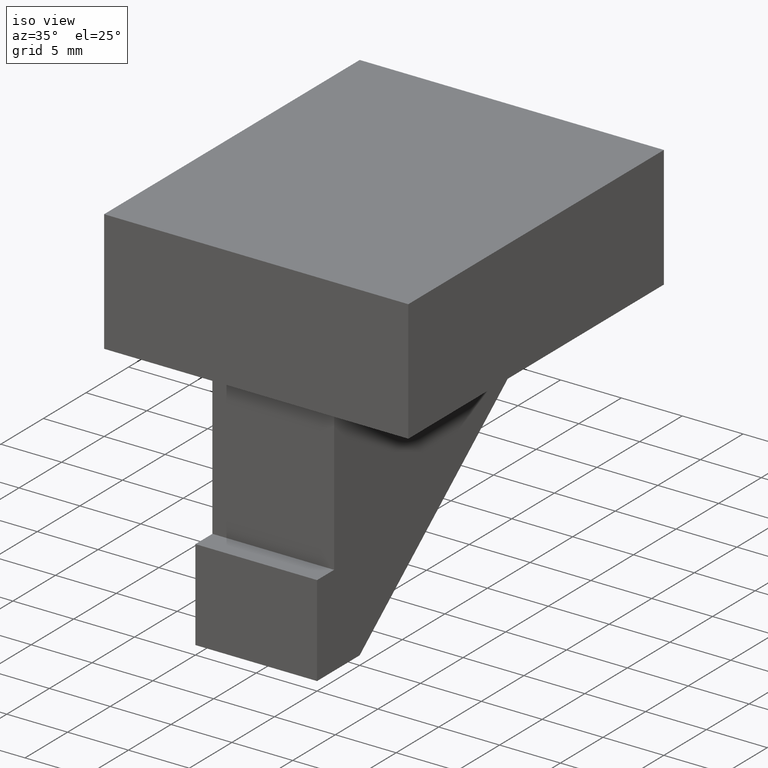
[diagram: clean part render]
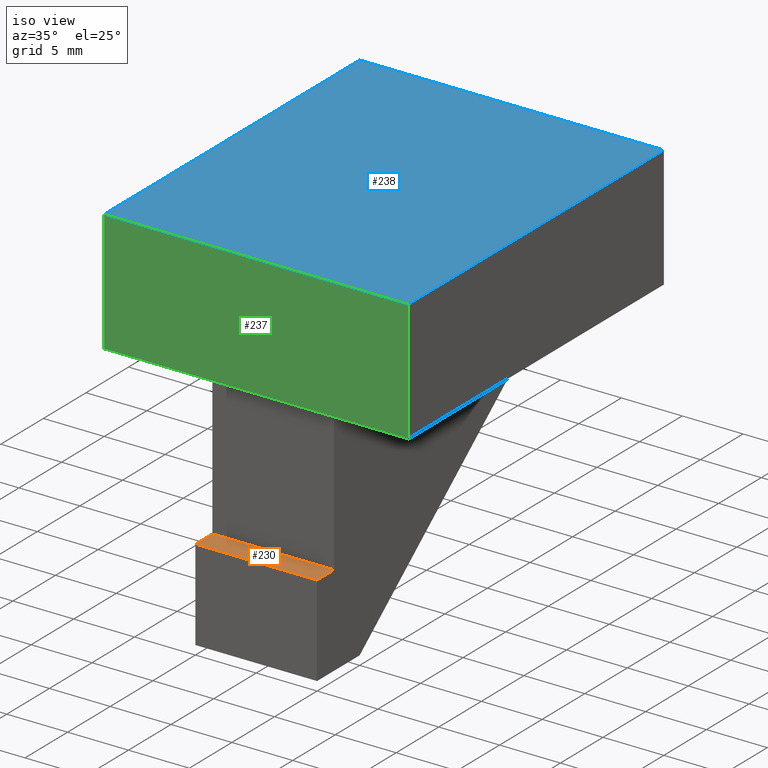
[diagram: same view with three faces highlighted in distinct colors, each labeled with its STEP entity id]
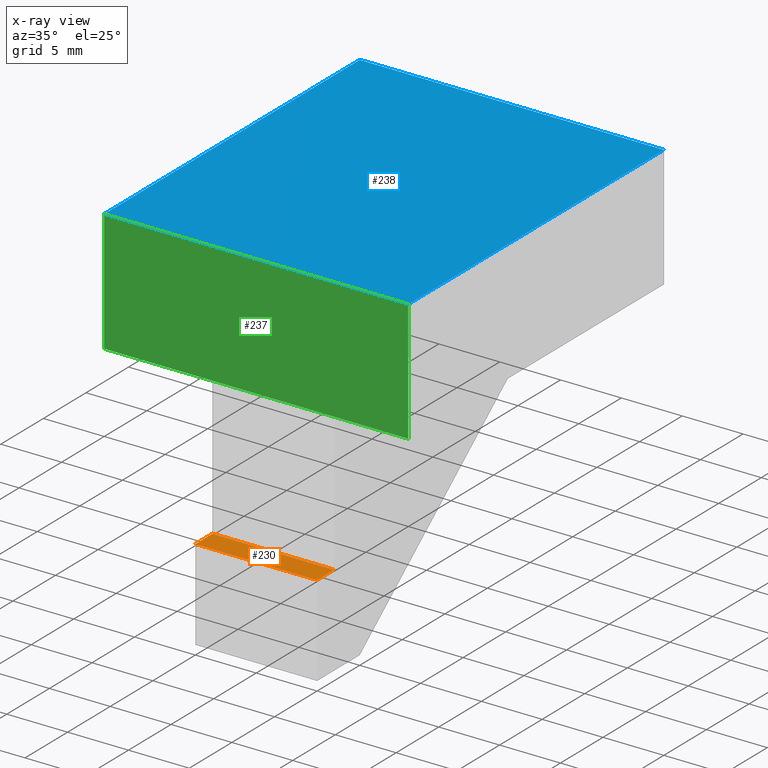
[diagram: x-ray of the same camera — body ghosted, the three highlighted faces saturated]
A machine part, iso view with three faces highlighted in distinct colors.
The next image is the same camera in x-ray (body ghosted, the three faces saturated) — at least one of them is partly hidden behind the body in this view.
Their STEP definitions:

[orange] entity #230 — the highlighted planar face has unit normal (0, 0, 1).
#16=FACE_OUTER_BOUND('',#29,.T.);
#29=EDGE_LOOP('',(#160,#161,#162,#163));
#42=LINE('',#343,#73);
#47=LINE('',#353,#78);
#48=LINE('',#355,#79);
#49=LINE('',#356,#80);
#73=VECTOR('',#283,10.);
#78=VECTOR('',#290,10.);
#79=VECTOR('',#291,10.);
#80=VECTOR('',#292,10.);
#104=VERTEX_POINT('',#340);
#105=VERTEX_POINT('',#342);
#109=VERTEX_POINT('',#352);
#110=VERTEX_POINT('',#354);
#124=EDGE_CURVE('',#104,#105,#42,.T.);
#129=EDGE_CURVE('',#109,#104,#47,.T.);
#130=EDGE_CURVE('',#110,#109,#48,.T.);
#131=EDGE_CURVE('',#105,#110,#49,.T.);
#160=ORIENTED_EDGE('',*,*,#129,.F.);
#161=ORIENTED_EDGE('',*,*,#130,.F.);
#162=ORIENTED_EDGE('',*,*,#131,.F.);
#163=ORIENTED_EDGE('',*,*,#124,.F.);
#217=PLANE('',#266);
#230=ADVANCED_FACE('',(#16),#217,.T.);
#266=AXIS2_PLACEMENT_3D('',#351,#288,#289);
#283=DIRECTION('',(0.,1.,0.));
#288=DIRECTION('center_axis',(0.,0.,1.));
#289=DIRECTION('ref_axis',(0.,-1.,0.));
#290=DIRECTION('',(-1.,0.,0.));
#291=DIRECTION('',(0.,-1.,0.));
#292=DIRECTION('',(1.,0.,0.));
#340=CARTESIAN_POINT('',(-5.,0.,-12.5));
#342=CARTESIAN_POINT('',(-5.,2.,-12.5));
#343=CARTESIAN_POINT('',(-5.,2.,-12.5));
#351=CARTESIAN_POINT('Origin',(0.,2.,-12.5));
#352=CARTESIAN_POINT('',(5.,0.,-12.5));
#353=CARTESIAN_POINT('',(0.,0.,-12.5));
#354=CARTESIAN_POINT('',(5.,2.,-12.5));
#355=CARTESIAN_POINT('',(5.,2.,-12.5));
#356=CARTESIAN_POINT('',(0.,2.,-12.5));

[blue] entity #238 — the highlighted planar face has unit normal (0, 0, 1).
#24=FACE_OUTER_BOUND('',#37,.T.);
#37=EDGE_LOOP('',(#194,#195,#196,#197));
#61=LINE('',#382,#92);
#65=LINE('',#389,#96);
#66=LINE('',#392,#97);
#67=LINE('',#393,#98);
#92=VECTOR('',#316,10.);
#96=VECTOR('',#322,10.);
#97=VECTOR('',#325,10.);
#98=VECTOR('',#326,10.);
#117=VERTEX_POINT('',#379);
#118=VERTEX_POINT('',#381);
#120=VERTEX_POINT('',#387);
#121=VERTEX_POINT('',#391);
#143=EDGE_CURVE('',#117,#118,#61,.T.);
#147=EDGE_CURVE('',#117,#120,#65,.T.);
#148=EDGE_CURVE('',#121,#120,#66,.T.);
#149=EDGE_CURVE('',#118,#121,#67,.T.);
#194=ORIENTED_EDGE('',*,*,#147,.T.);
#195=ORIENTED_EDGE('',*,*,#148,.F.);
#196=ORIENTED_EDGE('',*,*,#149,.F.);
#197=ORIENTED_EDGE('',*,*,#143,.F.);
#225=PLANE('',#274);
#238=ADVANCED_FACE('',(#24),#225,.T.);
#274=AXIS2_PLACEMENT_3D('',#390,#323,#324);
#316=DIRECTION('',(0.,1.,0.));
#322=DIRECTION('',(1.,0.,0.));
#323=DIRECTION('center_axis',(0.,0.,1.));
#324=DIRECTION('ref_axis',(0.,-1.,0.));
#325=DIRECTION('',(0.,-1.,0.));
#326=DIRECTION('',(1.,0.,0.));
#379=CARTESIAN_POINT('',(-12.5,0.,10.));
#381=CARTESIAN_POINT('',(-12.5,30.,10.));
#382=CARTESIAN_POINT('',(-12.5,30.,10.));
#387=CARTESIAN_POINT('',(12.5,0.,10.));
#389=CARTESIAN_POINT('',(0.,0.,10.));
#390=CARTESIAN_POINT('Origin',(0.,30.,10.));
#391=CARTESIAN_POINT('',(12.5,30.,10.));
#392=CARTESIAN_POINT('',(12.5,30.,10.));
#393=CARTESIAN_POINT('',(0.,30.,10.));

[green] entity #237 — the highlighted planar face has unit normal (0, -1, -0).
#23=FACE_OUTER_BOUND('',#36,.T.);
#36=EDGE_LOOP('',(#190,#191,#192,#193));
#60=LINE('',#380,#91);
#63=LINE('',#386,#94);
#64=LINE('',#388,#95);
#65=LINE('',#389,#96);
#91=VECTOR('',#315,10.);
#94=VECTOR('',#320,10.);
#95=VECTOR('',#321,10.);
#96=VECTOR('',#322,10.);
#116=VERTEX_POINT('',#377);
#117=VERTEX_POINT('',#379);
#119=VERTEX_POINT('',#385);
#120=VERTEX_POINT('',#387);
#142=EDGE_CURVE('',#116,#117,#60,.T.);
#145=EDGE_CURVE('',#119,#116,#63,.T.);
#146=EDGE_CURVE('',#120,#119,#64,.T.);
#147=EDGE_CURVE('',#117,#120,#65,.T.);
#190=ORIENTED_EDGE('',*,*,#145,.F.);
#191=ORIENTED_EDGE('',*,*,#146,.F.);
#192=ORIENTED_EDGE('',*,*,#147,.F.);
#193=ORIENTED_EDGE('',*,*,#142,.F.);
#224=PLANE('',#273);
#237=ADVANCED_FACE('',(#23),#224,.T.);
#273=AXIS2_PLACEMENT_3D('',#384,#318,#319);
#315=DIRECTION('',(0.,-1.80411241501588E-16,1.));
#318=DIRECTION('center_axis',(0.,-1.,-1.80411241501588E-16));
#319=DIRECTION('ref_axis',(0.,1.80411241501588E-16,-1.));
#320=DIRECTION('',(-1.,0.,0.));
#321=DIRECTION('',(0.,1.80411241501588E-16,-1.));
#322=DIRECTION('',(1.,0.,0.));
#377=CARTESIAN_POINT('',(-12.5,0.,0.));
#379=CARTESIAN_POINT('',(-12.5,0.,10.));
#380=CARTESIAN_POINT('',(-12.5,-5.48172618408671E-15,10.));
#384=CARTESIAN_POINT('Origin',(0.,-5.48172618408671E-15,10.));
#385=CARTESIAN_POINT('',(12.5,0.,0.));
#386=CARTESIAN_POINT('',(0.,0.,0.));
#387=CARTESIAN_POINT('',(12.5,0.,10.));
#388=CARTESIAN_POINT('',(12.5,-5.48172618408671E-15,10.));
#389=CARTESIAN_POINT('',(0.,0.,10.));